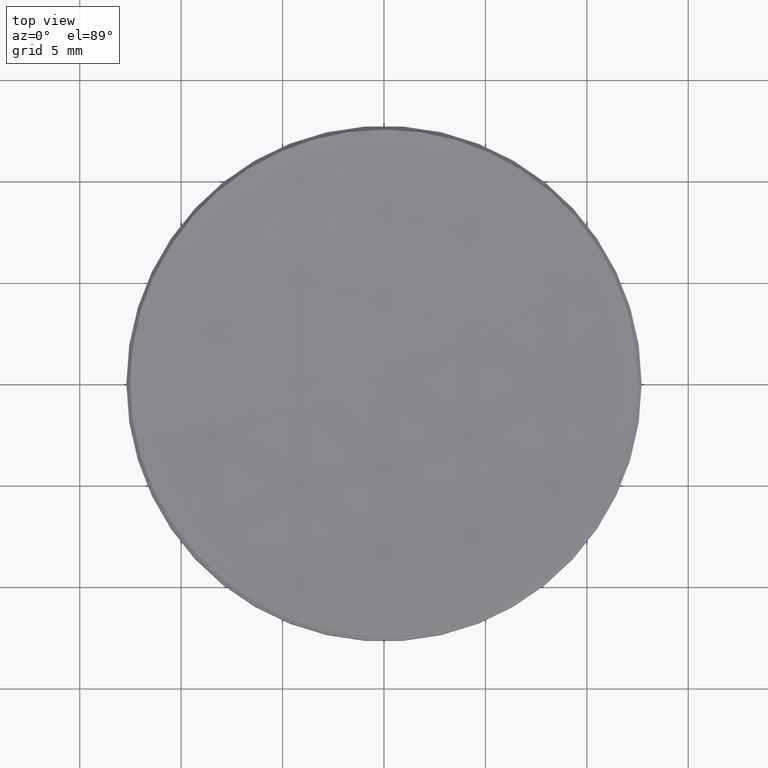
[diagram: clean part render]
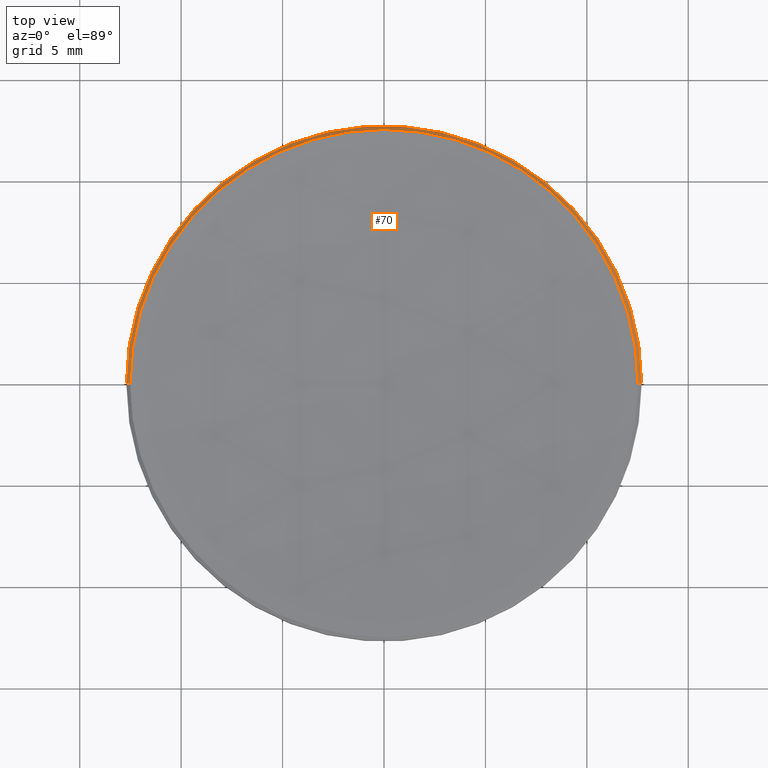
[diagram: same view with one face highlighted and labeled with its STEP entity id]
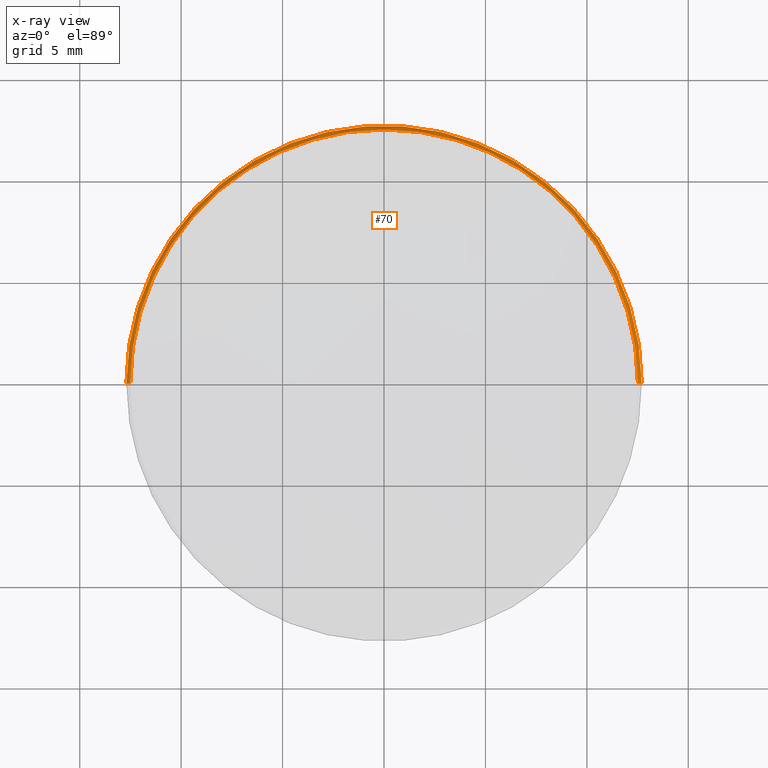
[diagram: x-ray of the same camera — body ghosted, the highlighted face saturated]
A machine part, top view. The second image highlights one B-rep face of the part: STEP entity #70.
The next image is the same camera in x-ray: the body ghosted, the highlighted face saturated — about 0% of this face is hidden behind the body in this view.
In plain terms, the highlighted conical surface has half-angle 45 deg.
Its self-contained STEP definition (entity closure, byte-faithful):
#3 = VECTOR ( 'NONE', #83, 1000.000000000000000 ) ;
#5 = EDGE_CURVE ( 'NONE', #319, #9, #18, .T. ) ;
#9 = VERTEX_POINT ( 'NONE', #290 ) ;
#11 = DIRECTION ( 'NONE',  ( 0.000000000000000000, 0.000000000000000000, -1.000000000000000000 ) ) ;
#18 = LINE ( 'NONE', #242, #317 ) ;
#21 = DIRECTION ( 'NONE',  ( 1.000000000000000000, 0.000000000000000000, 0.000000000000000000 ) ) ;
#29 = AXIS2_PLACEMENT_3D ( 'NONE', #53, #76, #202 ) ;
#42 = VERTEX_POINT ( 'NONE', #90 ) ;
#44 = CONICAL_SURFACE ( 'NONE', #278, 12.51756548749907161, 0.7853981633974911336 ) ;
#45 = CIRCLE ( 'NONE', #134, 12.51756548749907694 ) ;
#47 = DIRECTION ( 'NONE',  ( -1.000000000000000000, 0.000000000000000000, 0.000000000000000000 ) ) ;
#53 = CARTESIAN_POINT ( 'NONE',  ( 0.000000000000000000, 0.000000000000000000, 5.982434512500911516 ) ) ;
#59 = FACE_OUTER_BOUND ( 'NONE', #119, .T. ) ;
#70 = ADVANCED_FACE ( 'NONE', ( #59 ), #44, .T. ) ;
#76 = DIRECTION ( 'NONE',  ( -0.000000000000000000, -0.000000000000000000, 1.000000000000000000 ) ) ;
#80 = CARTESIAN_POINT ( 'NONE',  ( 0.000000000000000000, 0.000000000000000000, 5.982434512500911516 ) ) ;
#83 = DIRECTION ( 'NONE',  ( 0.7071067811865777708, 8.659560562355303869E-17, -0.7071067811865172636 ) ) ;
#84 = CARTESIAN_POINT ( 'NONE',  ( -12.51756548749907694, 0.000000000000000000, 5.982434512500911516 ) ) ;
#85 = AXIS2_PLACEMENT_3D ( 'NONE', #128, #142, #21 ) ;
#90 = CARTESIAN_POINT ( 'NONE',  ( 0.000000000000000000, 12.51756548749897568, 5.982434512500911516 ) ) ;
#91 = VERTEX_POINT ( 'NONE', #329 ) ;
#96 = DIRECTION ( 'NONE',  ( -0.7071067811865777708, 0.000000000000000000, -0.7071067811865172636 ) ) ;
#98 = CARTESIAN_POINT ( 'NONE',  ( 12.51756548749907161, 1.532959650738311713E-15, 5.982434512500911516 ) ) ;
#112 = EDGE_CURVE ( 'NONE', #214, #42, #45, .T. ) ;
#114 = ORIENTED_EDGE ( 'NONE', *, *, #234, .F. ) ;
#119 = EDGE_LOOP ( 'NONE', ( #295, #273, #114, #164, #205 ) ) ;
#123 = CIRCLE ( 'NONE', #85, 12.69999999999999929 ) ;
#128 = CARTESIAN_POINT ( 'NONE',  ( 0.000000000000000000, 0.000000000000000000, 5.799999999999999822 ) ) ;
#134 = AXIS2_PLACEMENT_3D ( 'NONE', #80, #328, #303 ) ;
#142 = DIRECTION ( 'NONE',  ( 0.000000000000000000, 0.000000000000000000, -1.000000000000000000 ) ) ;
#143 = EDGE_CURVE ( 'NONE', #42, #319, #285, .T. ) ;
#164 = ORIENTED_EDGE ( 'NONE', *, *, #5, .F. ) ;
#192 = EDGE_CURVE ( 'NONE', #214, #91, #302, .T. ) ;
#202 = DIRECTION ( 'NONE',  ( 1.000000000000000000, 0.000000000000000000, 0.000000000000000000 ) ) ;
#205 = ORIENTED_EDGE ( 'NONE', *, *, #143, .F. ) ;
#214 = VERTEX_POINT ( 'NONE', #327 ) ;
#234 = EDGE_CURVE ( 'NONE', #9, #91, #123, .T. ) ;
#240 = CARTESIAN_POINT ( 'NONE',  ( 0.000000000000000000, 0.000000000000000000, 5.982434512500911516 ) ) ;
#242 = CARTESIAN_POINT ( 'NONE',  ( -12.51756548749907161, 0.000000000000000000, 5.982434512500911516 ) ) ;
#273 = ORIENTED_EDGE ( 'NONE', *, *, #192, .T. ) ;
#278 = AXIS2_PLACEMENT_3D ( 'NONE', #240, #11, #47 ) ;
#285 = CIRCLE ( 'NONE', #29, 12.51756548749907694 ) ;
#290 = CARTESIAN_POINT ( 'NONE',  ( -12.69999999999999929, 0.000000000000000000, 5.799999999999999822 ) ) ;
#295 = ORIENTED_EDGE ( 'NONE', *, *, #112, .F. ) ;
#302 = LINE ( 'NONE', #98, #3 ) ;
#303 = DIRECTION ( 'NONE',  ( 1.000000000000000000, 0.000000000000000000, 0.000000000000000000 ) ) ;
#317 = VECTOR ( 'NONE', #96, 1000.000000000000000 ) ;
#319 = VERTEX_POINT ( 'NONE', #84 ) ;
#327 = CARTESIAN_POINT ( 'NONE',  ( 12.51756548749907694, 1.544130542827725172E-15, 5.982434512500911516 ) ) ;
#328 = DIRECTION ( 'NONE',  ( -0.000000000000000000, -0.000000000000000000, 1.000000000000000000 ) ) ;
#329 = CARTESIAN_POINT ( 'NONE',  ( 12.69999999999999929, 1.555301434917138433E-15, 5.799999999999999822 ) ) ;